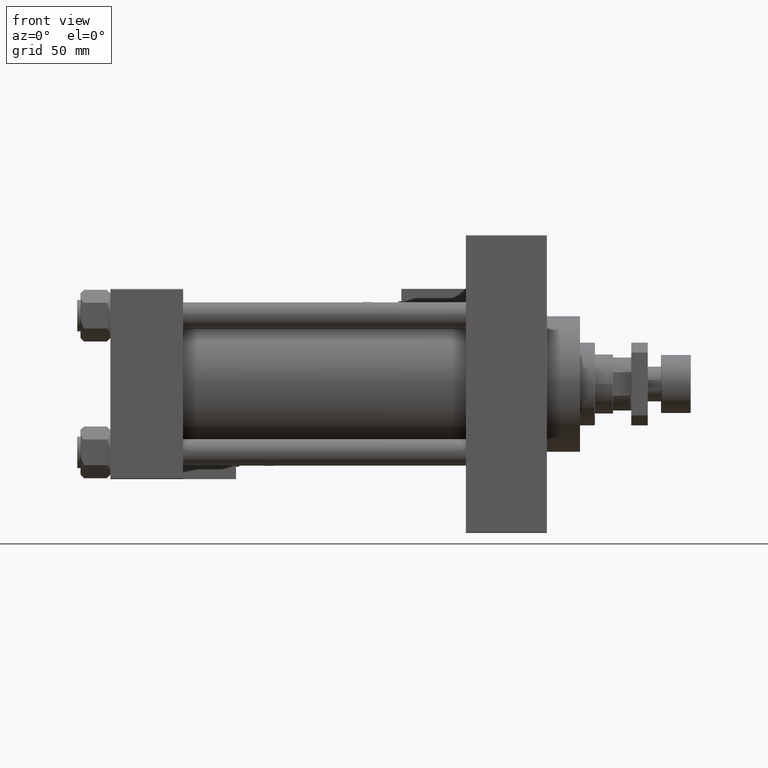
[diagram: clean part render]
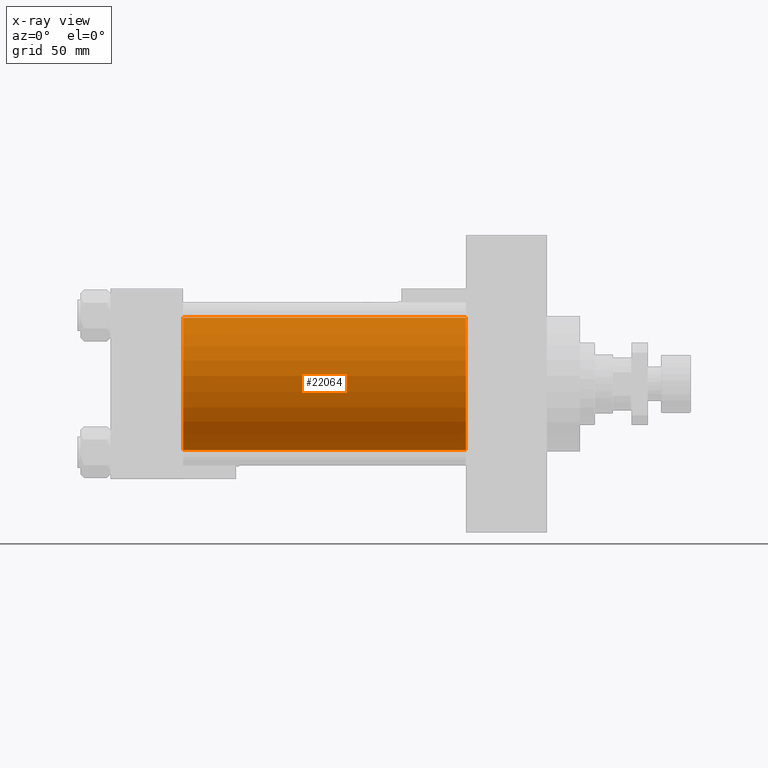
[diagram: x-ray — body ghosted, one internal face saturated and labeled with its STEP entity id]
A machine part, front view, then the same camera in x-ray: the body is ghosted and one INTERNAL B-rep face — a face not visible from any outside direction — is saturated and labeled: STEP entity #22064.
In plain terms, the highlighted cylindrical surface (partial cylindrical patch) has radius 40 mm, axis along (-1, -0, -0).
Its self-contained STEP definition (entity closure, byte-faithful):
#1686 = EDGE_CURVE ( 'NONE', #21429, #25188, #16046, .T. ) ;
#1944 = DIRECTION ( 'NONE',  ( 0.000000000000000000, 0.000000000000000000, -1.000000000000000000 ) ) ;
#2915 = VERTEX_POINT ( 'NONE', #38808 ) ;
#5312 = DIRECTION ( 'NONE',  ( 0.000000000000000000, 0.000000000000000000, -1.000000000000000000 ) ) ;
#9352 = DIRECTION ( 'NONE',  ( 0.000000000000000000, 0.000000000000000000, 1.000000000000000000 ) ) ;
#11944 = EDGE_CURVE ( 'NONE', #25188, #2915, #23248, .T. ) ;
#12442 = CARTESIAN_POINT ( 'NONE',  ( 44.00000000000000000, -2.602085213965210642E-15, 0.000000000000000000 ) ) ;
#12518 = CARTESIAN_POINT ( 'NONE',  ( 215.0000000000000284, -2.602085213965210642E-15, 40.00000000000000000 ) ) ;
#12964 = ORIENTED_EDGE ( 'NONE', *, *, #1686, .F. ) ;
#13132 = CARTESIAN_POINT ( 'NONE',  ( 215.0000000000000284, 2.296501982624201990E-15, -40.00000000000000000 ) ) ;
#13430 = EDGE_CURVE ( 'NONE', #15754, #2915, #45764, .T. ) ;
#13890 = CIRCLE ( 'NONE', #19062, 40.00000000000000000 ) ;
#14764 = AXIS2_PLACEMENT_3D ( 'NONE', #12442, #38259, #5312 ) ;
#15754 = VERTEX_POINT ( 'NONE', #36960 ) ;
#16046 = LINE ( 'NONE', #12518, #29282 ) ;
#18316 = FACE_OUTER_BOUND ( 'NONE', #39146, .T. ) ;
#19062 = AXIS2_PLACEMENT_3D ( 'NONE', #52041, #23978, #1944 ) ;
#21246 = ORIENTED_EDGE ( 'NONE', *, *, #11944, .F. ) ;
#21429 = VERTEX_POINT ( 'NONE', #32783 ) ;
#22064 = ADVANCED_FACE ( 'NONE', ( #18316 ), #26479, .F. ) ;
#23248 = CIRCLE ( 'NONE', #14764, 40.00000000000000000 ) ;
#23978 = DIRECTION ( 'NONE',  ( 1.000000000000000000, 0.000000000000000000, 0.000000000000000000 ) ) ;
#24683 = AXIS2_PLACEMENT_3D ( 'NONE', #46636, #30563, #9352 ) ;
#24851 = CARTESIAN_POINT ( 'NONE',  ( 44.00000000000000000, -2.602085213965210642E-15, 40.00000000000000000 ) ) ;
#25188 = VERTEX_POINT ( 'NONE', #24851 ) ;
#26479 = CYLINDRICAL_SURFACE ( 'NONE', #24683, 40.00000000000000000 ) ;
#29282 = VECTOR ( 'NONE', #49780, 1000.000000000000000 ) ;
#29331 = ORIENTED_EDGE ( 'NONE', *, *, #13430, .T. ) ;
#29700 = DIRECTION ( 'NONE',  ( -1.000000000000000000, -0.000000000000000000, -0.000000000000000000 ) ) ;
#30563 = DIRECTION ( 'NONE',  ( -1.000000000000000000, -0.000000000000000000, -0.000000000000000000 ) ) ;
#32783 = CARTESIAN_POINT ( 'NONE',  ( 215.0000000000000284, -2.602085213965210642E-15, 40.00000000000000000 ) ) ;
#36960 = CARTESIAN_POINT ( 'NONE',  ( 215.0000000000000284, 2.296501982624201990E-15, -40.00000000000000000 ) ) ;
#38259 = DIRECTION ( 'NONE',  ( 1.000000000000000000, 0.000000000000000000, 0.000000000000000000 ) ) ;
#38808 = CARTESIAN_POINT ( 'NONE',  ( 44.00000000000000000, 2.296501982624201990E-15, -40.00000000000000000 ) ) ;
#39028 = EDGE_CURVE ( 'NONE', #21429, #15754, #13890, .T. ) ;
#39146 = EDGE_LOOP ( 'NONE', ( #48882, #29331, #21246, #12964 ) ) ;
#45764 = LINE ( 'NONE', #13132, #50543 ) ;
#46636 = CARTESIAN_POINT ( 'NONE',  ( 215.0000000000000284, -2.602085213965210642E-15, 0.000000000000000000 ) ) ;
#48882 = ORIENTED_EDGE ( 'NONE', *, *, #39028, .T. ) ;
#49780 = DIRECTION ( 'NONE',  ( -1.000000000000000000, -0.000000000000000000, -0.000000000000000000 ) ) ;
#50543 = VECTOR ( 'NONE', #29700, 1000.000000000000000 ) ;
#52041 = CARTESIAN_POINT ( 'NONE',  ( 215.0000000000000284, -2.602085213965210642E-15, 0.000000000000000000 ) ) ;